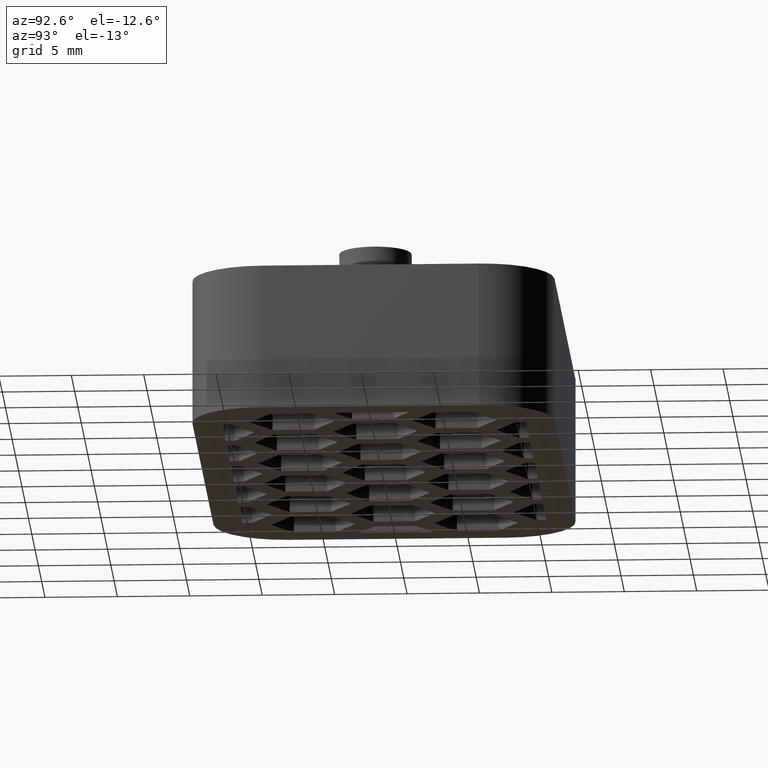
[diagram: clean part render]
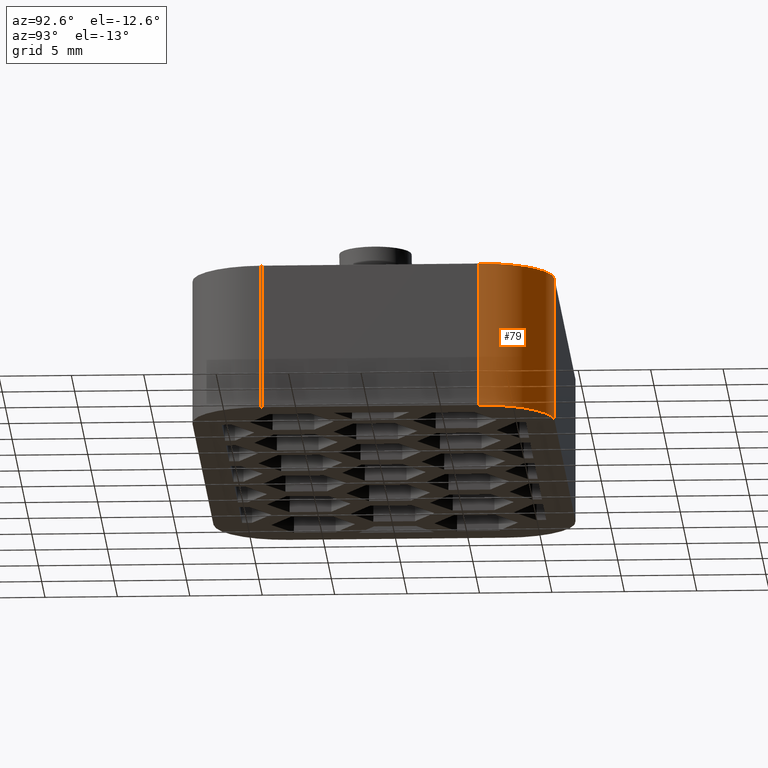
[diagram: same view with one face highlighted and labeled with its STEP entity id]
A machine part, auxiliary view. The second image highlights one B-rep face of the part: STEP entity #79.
In plain terms, the highlighted cylindrical surface (partial cylindrical patch) has radius 5 mm, axis along (0, -0, -1).
Its self-contained STEP definition (entity closure, byte-faithful):
#79 = ADVANCED_FACE( '', ( #327 ), #328, .T. );
#327 = FACE_OUTER_BOUND( '', #837, .T. );
#328 = CYLINDRICAL_SURFACE( '', #838, 5.00000000000000 );
#837 = EDGE_LOOP( '', ( #1394, #1395, #1396, #1397 ) );
#838 = AXIS2_PLACEMENT_3D( '', #1398, #1399, #1400 );
#1394 = ORIENTED_EDGE( '', *, *, #3254, .F. );
#1395 = ORIENTED_EDGE( '', *, *, #3264, .F. );
#1396 = ORIENTED_EDGE( '', *, *, #3270, .T. );
#1397 = ORIENTED_EDGE( '', *, *, #3271, .T. );
#1398 = CARTESIAN_POINT( '', ( 16.0000000000000, 7.50000000000000, -1.43370151904978E-014 ) );
#1399 = DIRECTION( '', ( 1.40129846432482E-047, -6.12303176911189E-017, -1.00000000000000 ) );
#1400 = DIRECTION( '', ( 1.00000000000000, 1.59266588632689E-015, -9.75194381956031E-032 ) );
#3254 = EDGE_CURVE( '', #3875, #3877, #3878, .T. );
#3264 = EDGE_CURVE( '', #3894, #3875, #3896, .T. );
#3270 = EDGE_CURVE( '', #3894, #3905, #3906, .T. );
#3271 = EDGE_CURVE( '', #3905, #3877, #3907, .T. );
#3875 = VERTEX_POINT( '', #4889 );
#3877 = VERTEX_POINT( '', #4892 );
#3878 = CIRCLE( '', #4893, 5.00000000000000 );
#3894 = VERTEX_POINT( '', #4913 );
#3896 = LINE( '', #4916, #4917 );
#3905 = VERTEX_POINT( '', #4931 );
#3906 = CIRCLE( '', #4932, 5.00000000000000 );
#3907 = LINE( '', #4933, #4934 );
#4889 = CARTESIAN_POINT( '', ( 21.0000000000000, 7.50000000000001, 9.99999999999999 ) );
#4892 = CARTESIAN_POINT( '', ( 16.0000000000000, 12.5000000000000, 9.99999999999999 ) );
#4893 = AXIS2_PLACEMENT_3D( '', #6404, #6405, #6406 );
#4913 = CARTESIAN_POINT( '', ( 21.0000000000000, 7.50000000000001, -1.43370151904978E-014 ) );
#4916 = CARTESIAN_POINT( '', ( 21.0000000000000, 7.50000000000001, -1.43370151904978E-014 ) );
#4917 = VECTOR( '', #6424, 1000.00000000000 );
#4931 = CARTESIAN_POINT( '', ( 16.0000000000000, 12.5000000000000, -1.46431667789534E-014 ) );
#4932 = AXIS2_PLACEMENT_3D( '', #6430, #6431, #6432 );
#4933 = CARTESIAN_POINT( '', ( 16.0000000000000, 12.5000000000000, -1.46431667789534E-014 ) );
#4934 = VECTOR( '', #6433, 1000.00000000000 );
#6404 = CARTESIAN_POINT( '', ( 16.0000000000000, 7.50000000000000, 9.99999999999999 ) );
#6405 = DIRECTION( '', ( -3.50324616081205E-048, 6.12303176911189E-017, 1.00000000000000 ) );
#6406 = DIRECTION( '', ( 4.89002284845276E-016, 1.00000000000000, -6.12303176911189E-017 ) );
#6424 = DIRECTION( '', ( 0.000000000000000, 6.12303176911189E-017, 1.00000000000000 ) );
#6430 = CARTESIAN_POINT( '', ( 16.0000000000000, 7.50000000000000, -1.43370151904978E-014 ) );
#6431 = DIRECTION( '', ( -3.50324616081205E-048, 6.12303176911189E-017, 1.00000000000000 ) );
#6432 = DIRECTION( '', ( 4.89002284845276E-016, 1.00000000000000, -6.12303176911189E-017 ) );
#6433 = DIRECTION( '', ( 0.000000000000000, 6.12303176911189E-017, 1.00000000000000 ) );